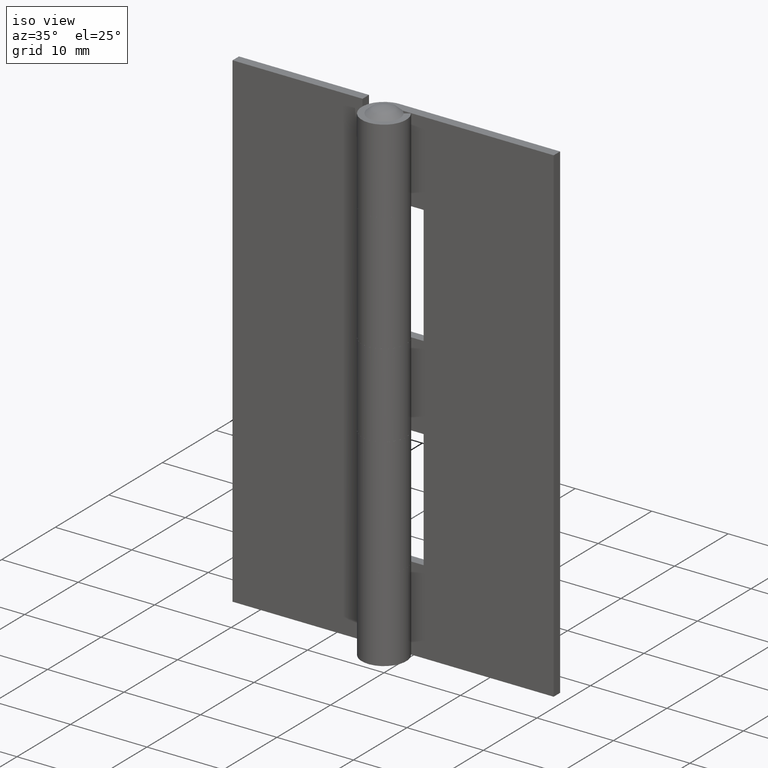
[diagram: clean part render]
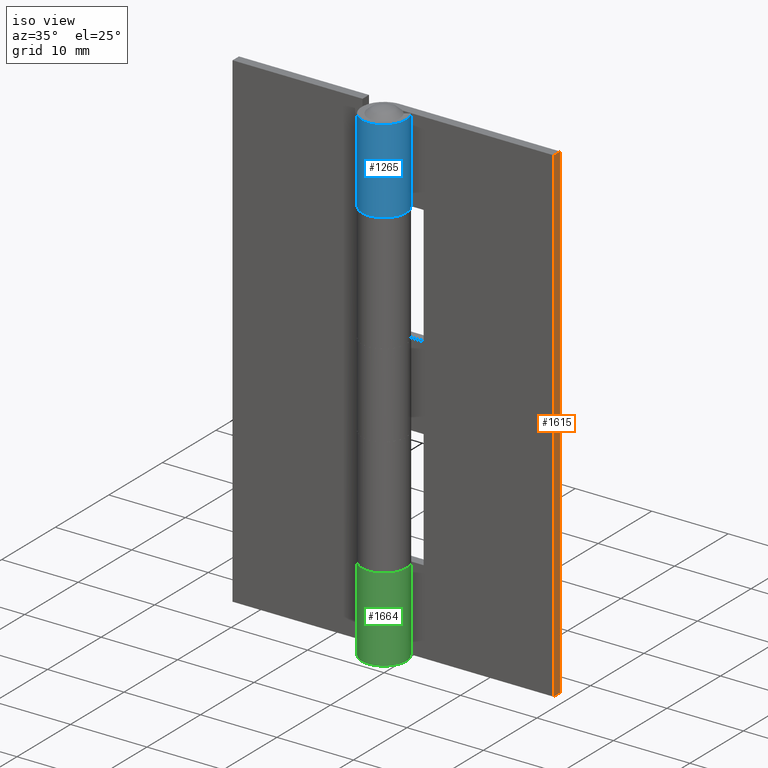
[diagram: same view with three faces highlighted in distinct colors, each labeled with its STEP entity id]
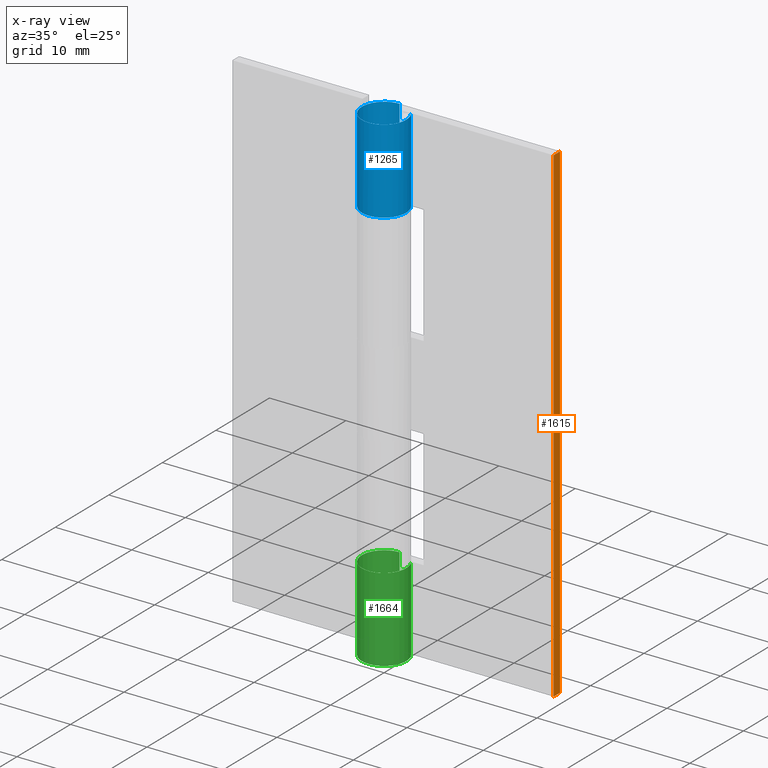
[diagram: x-ray of the same camera — body ghosted, the three highlighted faces saturated]
A machine part, iso view with three faces highlighted in distinct colors.
The next image is the same camera in x-ray (body ghosted, the three faces saturated) — at least one of them is partly hidden behind the body in this view.
Their STEP definitions:

[orange] entity #1615 — the highlighted face is a freeform B-spline surface patch.
#1137=CARTESIAN_POINT('',(21.0,1.700001000000000,0.0));
#1138=VERTEX_POINT('',#1137);
#1144=CARTESIAN_POINT('',(21.0,1.700001000000000,64.0));
#1145=VERTEX_POINT('',#1144);
#1146=CARTESIAN_POINT('',(21.0,1.700001000000000,64.0));
#1147=CARTESIAN_POINT('',(21.0,1.700001000000000,0.0));
#1148=QUASI_UNIFORM_CURVE('',1,(#1146,#1147),.UNSPECIFIED.,.F.,.U.);
#1149=EDGE_CURVE('',#1145,#1138,#1148,.T.);
#1554=CARTESIAN_POINT('',(21.0,2.900002000000000,0.0));
#1555=VERTEX_POINT('',#1554);
#1561=CARTESIAN_POINT('',(21.0,2.900002000000000,0.0));
#1562=CARTESIAN_POINT('',(21.0,1.700001000000000,0.0));
#1563=QUASI_UNIFORM_CURVE('',1,(#1561,#1562),.UNSPECIFIED.,.F.,.U.);
#1564=EDGE_CURVE('',#1555,#1138,#1563,.T.);
#1585=CARTESIAN_POINT('',(21.0,2.900002000000000,64.0));
#1586=VERTEX_POINT('',#1585);
#1587=CARTESIAN_POINT('',(21.0,2.900002000000000,64.0));
#1588=CARTESIAN_POINT('',(21.0,1.700001000000000,64.0));
#1589=QUASI_UNIFORM_CURVE('',1,(#1587,#1588),.UNSPECIFIED.,.F.,.U.);
#1590=EDGE_CURVE('',#1586,#1145,#1589,.T.);
#1600=CARTESIAN_POINT('',(21.0,1.640060952375835,67.196799875955577));
#1601=CARTESIAN_POINT('',(21.0,1.640060952375835,-3.196801592569350));
#1602=CARTESIAN_POINT('',(21.0,2.959942079810701,67.196799875955577));
#1603=CARTESIAN_POINT('',(21.0,2.959942079810701,-3.196801592569350));
#1604=B_SPLINE_SURFACE_WITH_KNOTS('',1,1,((#1600,#1602),(#1601,#1603)),.UNSPECIFIED.,.F.,.F.,.U.,(2,2),(2,2),(0.0,70.393601468524921),(0.041708334948495,0.958291687403247),.UNSPECIFIED.);
#1605=ORIENTED_EDGE('',*,*,#1564,.F.);
#1606=CARTESIAN_POINT('',(21.0,2.900002000000000,64.0));
#1607=CARTESIAN_POINT('',(21.0,2.900002000000000,0.0));
#1608=QUASI_UNIFORM_CURVE('',1,(#1606,#1607),.UNSPECIFIED.,.F.,.U.);
#1609=EDGE_CURVE('',#1586,#1555,#1608,.T.);
#1610=ORIENTED_EDGE('',*,*,#1609,.F.);
#1611=ORIENTED_EDGE('',*,*,#1590,.T.);
#1612=ORIENTED_EDGE('',*,*,#1149,.T.);
#1613=EDGE_LOOP('',(#1605,#1610,#1611,#1612));
#1614=FACE_OUTER_BOUND('',#1613,.T.);
#1615=ADVANCED_FACE('',(#1614),#1604,.T.);

[blue] entity #1265 — the highlighted face is a freeform B-spline surface patch.
#874=CARTESIAN_POINT('',(2.384848264526935,1.650003137932380,64.0));
#875=VERTEX_POINT('',#874);
#876=CARTESIAN_POINT('',(2.384848264526935,1.650003137932380,53.0));
#877=VERTEX_POINT('',#876);
#878=CARTESIAN_POINT('',(2.384848264526935,1.650003137932380,64.0));
#879=CARTESIAN_POINT('',(2.384848264526935,1.650003137932380,53.0));
#880=QUASI_UNIFORM_CURVE('',1,(#878,#879),.UNSPECIFIED.,.F.,.U.);
#881=EDGE_CURVE('',#875,#877,#880,.T.);
#1165=CARTESIAN_POINT('',(0.025306970398353,2.899891576809942,64.275000000000006));
#1166=CARTESIAN_POINT('',(0.025306970398353,2.899891576809942,52.718124999999993));
#1167=CARTESIAN_POINT('',(-3.598668132338351,2.931517528408523,64.275000000000020));
#1168=CARTESIAN_POINT('',(-3.598668132338351,2.931517528408523,52.718124999999993));
#1169=CARTESIAN_POINT('',(-2.834864105768699,-0.611193178813562,64.275000000000006));
#1170=CARTESIAN_POINT('',(-2.834864105768699,-0.611193178813562,52.718124999999993));
#1171=CARTESIAN_POINT('',(-2.071060079199047,-4.153903886035647,64.275000000000020));
#1172=CARTESIAN_POINT('',(-2.071060079199047,-4.153903886035647,52.718124999999993));
#1173=CARTESIAN_POINT('',(1.217943231346909,-2.631848378083404,64.275000000000006));
#1174=CARTESIAN_POINT('',(1.217943231346909,-2.631848378083404,52.718124999999993));
#1175=CARTESIAN_POINT('',(4.506946541892866,-1.109792870131161,64.275000000000020));
#1176=CARTESIAN_POINT('',(4.506946541892866,-1.109792870131161,52.718124999999993));
#1177=CARTESIAN_POINT('',(2.300726273551261,1.765409361648148,64.275000000000006));
#1178=CARTESIAN_POINT('',(2.300726273551261,1.765409361648148,52.718124999999993));
#1186=(BOUNDED_SURFACE()B_SPLINE_SURFACE(1,2,((#1165,#1167,#1169,#1171,#1173,#1175,#1177),(#1166,#1168,#1170,#1172,#1174,#1176,#1178)),.UNSPECIFIED.,.F.,.F.,.U.)B_SPLINE_SURFACE_WITH_KNOTS((2,2),(3,2,2,3),(0.0,11.556875000000010),(0.0,5.574397452177710,11.148794904355420,16.723192356533129),.UNSPECIFIED.)GEOMETRIC_REPRESENTATION_ITEM()RATIONAL_B_SPLINE_SURFACE(((1.0,0.624788514543960,1.0,0.624788514543960,1.0,0.624788514543960,1.0),(1.0,0.624788514543960,1.0,0.624788514543960,1.0,0.624788514543960,1.0)))REPRESENTATION_ITEM('')SURFACE());
#1187=CARTESIAN_POINT('',(0.0,2.900002000000000,64.0));
#1188=VERTEX_POINT('',#1187);
#1189=CARTESIAN_POINT('',(0.0,2.900001999999955,53.0));
#1190=VERTEX_POINT('',#1189);
#1191=CARTESIAN_POINT('',(0.0,2.900002000000000,64.0));
#1192=CARTESIAN_POINT('',(0.0,2.900001999999955,53.0));
#1193=QUASI_UNIFORM_CURVE('',1,(#1191,#1192),.UNSPECIFIED.,.F.,.U.);
#1194=EDGE_CURVE('',#1188,#1190,#1193,.T.);
#1195=ORIENTED_EDGE('',*,*,#1194,.T.);
#1196=CARTESIAN_POINT('',(0.0,2.900001999999955,53.0));
#1197=CARTESIAN_POINT('',(-0.230916322945743,2.900051843514684,53.000000000000007));
#1198=CARTESIAN_POINT('',(-0.602353715693044,2.855390494401352,53.000000000000142));
#1199=CARTESIAN_POINT('',(-1.119765574784126,2.688738713115951,52.999999999999957));
#1200=CARTESIAN_POINT('',(-1.577478550480980,2.454787885111885,53.000000000000320));
#1201=CARTESIAN_POINT('',(-2.022417299504022,2.106110564977613,52.999999999999261));
#1202=CARTESIAN_POINT('',(-2.387914506345996,1.675277514576359,53.000000000001251));
#1203=CARTESIAN_POINT('',(-2.626867486968117,1.254604399072204,52.999999999998160));
#1204=CARTESIAN_POINT('',(-2.792461147031254,0.822534688259006,53.000000000001783));
#1205=CARTESIAN_POINT('',(-2.906714653900790,0.300706048141245,52.999999999998813));
#1206=CARTESIAN_POINT('',(-2.908102939836941,-0.255755205334858,53.000000000000483));
#1207=CARTESIAN_POINT('',(-2.800857258319563,-0.798935145002392,52.999999999999943));
#1208=CARTESIAN_POINT('',(-2.600821947317730,-1.337507887217424,52.999999999999531));
#1209=CARTESIAN_POINT('',(-2.251482442944635,-1.871710090162057,53.000000000001428));
#1210=CARTESIAN_POINT('',(-1.765272681436022,-2.327168437443382,52.999999999997229));
#1211=CARTESIAN_POINT('',(-1.316440701972532,-2.599297401031008,53.000000000002551));
#1212=CARTESIAN_POINT('',(-0.839815480375977,-2.789064021377569,52.999999999999240));
#1213=CARTESIAN_POINT('',(-0.278349188428350,-2.913486612209853,53.000000000000419));
#1214=CARTESIAN_POINT('',(0.349717590871114,-2.903580580148985,52.999999999999829));
#1215=CARTESIAN_POINT('',(0.996042703704406,-2.746024780197794,53.000000000000028));
#1216=CARTESIAN_POINT('',(1.506704662742316,-2.501376909506281,53.0));
#1217=CARTESIAN_POINT('',(1.996198584274117,-2.129797054363426,53.000000000000007));
#1218=CARTESIAN_POINT('',(2.371099506713013,-1.705908385575840,52.999999999999993));
#1219=CARTESIAN_POINT('',(2.674844440870867,-1.171026440093840,53.000000000000007));
#1220=CARTESIAN_POINT('',(2.830761380777442,-0.690714034280840,52.999999999999972));
#1221=CARTESIAN_POINT('',(2.906252172217586,-0.183420685755548,53.000000000000121));
#1222=CARTESIAN_POINT('',(2.902129370515007,0.331093308728724,52.999999999999929));
#1223=CARTESIAN_POINT('',(2.757262196087679,0.992085842355864,52.999999999999133));
#1224=CARTESIAN_POINT('',(2.539169219437536,1.427133653108593,53.000000000004661));
#1225=CARTESIAN_POINT('',(2.384848264526935,1.650003137932380,53.0));
#1226=B_SPLINE_CURVE_WITH_KNOTS('',3,(#1196,#1197,#1198,#1199,#1200,#1201,#1202,#1203,#1204,#1205,#1206,#1207,#1208,#1209,#1210,#1211,#1212,#1213,#1214,#1215,#1216,#1217,#1218,#1219,#1220,#1221,#1222,#1223,#1224,#1225),.UNSPECIFIED.,.F.,.U.,(4,1,1,1,1,1,1,1,1,1,1,1,1,1,1,1,1,1,1,1,1,1,1,1,1,1,1,4),(0.000000359959415,0.692735688596658,1.114405383404840,1.626452659728550,2.228857436963235,2.801142201469432,3.313172984215985,3.674628440037022,4.186602051641872,4.909489321539443,5.331158440743050,5.843202675051877,6.626314962169515,7.228717902535147,7.831060446576219,8.192520740326856,8.764780936417790,9.547908704662936,10.059949741606710,10.752698829877970,11.234634287120301,11.897208410370020,12.439377229152839,13.071892956558100,13.403215133295900,13.975495119682900,14.608005259282031,15.421227777951650),.UNSPECIFIED.);
#1227=EDGE_CURVE('',#1190,#877,#1226,.T.);
#1228=ORIENTED_EDGE('',*,*,#1227,.T.);
#1229=ORIENTED_EDGE('',*,*,#881,.F.);
#1230=CARTESIAN_POINT('',(2.384848264526935,1.650003137932380,64.0));
#1231=CARTESIAN_POINT('',(2.476246808553350,1.517916649032505,63.999999999999950));
#1232=CARTESIAN_POINT('',(2.652107297623267,1.212298361124550,63.999999999999957));
#1233=CARTESIAN_POINT('',(2.820533798730171,0.736814721821945,64.000000000000270));
#1234=CARTESIAN_POINT('',(2.904290857026576,0.230090217984858,63.999999999999780));
#1235=CARTESIAN_POINT('',(2.902999577099113,-0.354520100877242,64.000000000000341));
#1236=CARTESIAN_POINT('',(2.767017891355467,-0.947002781030132,63.999999999998323));
#1237=CARTESIAN_POINT('',(2.517576252793832,-1.464562844612376,64.000000000002601));
#1238=CARTESIAN_POINT('',(2.229299534036011,-1.877125511573560,63.999999999998053));
#1239=CARTESIAN_POINT('',(1.874094093930128,-2.235273817414512,64.000000000000028));
#1240=CARTESIAN_POINT('',(1.433994440338998,-2.538019863249175,64.000000000000810));
#1241=CARTESIAN_POINT('',(0.920006777076195,-2.771277428995943,63.999999999999567));
#1242=CARTESIAN_POINT('',(0.279476233440191,-2.916932834763959,63.999999999999673));
#1243=CARTESIAN_POINT('',(-0.388996405918919,-2.899656675079276,64.000000000001705));
#1244=CARTESIAN_POINT('',(-1.033120709685191,-2.732197972402759,63.999999999997513));
#1245=CARTESIAN_POINT('',(-1.575879452815064,-2.461952031015429,64.000000000000540));
#1246=CARTESIAN_POINT('',(-2.038900594207776,-2.087411041474231,64.000000000000398));
#1247=CARTESIAN_POINT('',(-2.356497758644149,-1.709198920974125,63.999999999999858));
#1248=CARTESIAN_POINT('',(-2.613293050563318,-1.288454908642442,64.000000000000014));
#1249=CARTESIAN_POINT('',(-2.782523214928296,-0.866923810560233,63.999999999999979));
#1250=CARTESIAN_POINT('',(-2.902343560754799,-0.305974500623505,64.000000000000014));
#1251=CARTESIAN_POINT('',(-2.912335077073460,0.240278592681119,64.0));
#1252=CARTESIAN_POINT('',(-2.805041077751836,0.784140704414097,64.0));
#1253=CARTESIAN_POINT('',(-2.636820683815972,1.237076620984599,63.999999999999979));
#1254=CARTESIAN_POINT('',(-2.363050075552268,1.719120938512014,64.000000000000128));
#1255=CARTESIAN_POINT('',(-1.944934542441323,2.186788195531112,64.000000000000227));
#1256=CARTESIAN_POINT('',(-1.372750396742252,2.584648372632955,63.999999999997357));
#1257=CARTESIAN_POINT('',(-0.722834427443229,2.839598881391344,64.000000000007716));
#1258=CARTESIAN_POINT('',(-0.240951384378107,2.900066729261097,63.999999999992149));
#1259=CARTESIAN_POINT('',(0.0,2.900002000000000,64.0));
#1260=B_SPLINE_CURVE_WITH_KNOTS('',3,(#1230,#1231,#1232,#1233,#1234,#1235,#1236,#1237,#1238,#1239,#1240,#1241,#1242,#1243,#1244,#1245,#1246,#1247,#1248,#1249,#1250,#1251,#1252,#1253,#1254,#1255,#1256,#1257,#1258,#1259),.UNSPECIFIED.,.F.,.U.,(4,1,1,1,1,1,1,1,1,1,1,1,1,1,1,1,1,1,1,1,1,1,1,1,1,1,1,4),(0.000000359963922,0.481878738990776,1.054165231920036,1.505973164562599,2.018014837023298,2.801142201472619,3.313172984218872,3.734862933725843,4.307069719236104,4.819111052918409,5.331158440745002,5.993802113517477,6.776930423892191,7.319094371077824,7.981672502831361,8.584070799897258,9.096109219926063,9.457546269340357,10.059949741607101,10.451516292559550,11.174399858393841,11.686366875758340,12.108056435287780,12.620087365329960,13.342975041270140,13.975495119682870,14.698386145329881,15.421227777951650),.UNSPECIFIED.);
#1261=EDGE_CURVE('',#875,#1188,#1260,.T.);
#1262=ORIENTED_EDGE('',*,*,#1261,.T.);
#1263=EDGE_LOOP('',(#1195,#1228,#1229,#1262));
#1264=FACE_OUTER_BOUND('',#1263,.T.);
#1265=ADVANCED_FACE('',(#1264),#1186,.T.);

[green] entity #1664 — the highlighted face is a freeform B-spline surface patch.
#1459=CARTESIAN_POINT('',(2.384848264526935,1.650003137932380,11.0));
#1460=VERTEX_POINT('',#1459);
#1469=CARTESIAN_POINT('',(0.0,2.900001999999955,11.0));
#1470=VERTEX_POINT('',#1469);
#1476=CARTESIAN_POINT('',(2.384848264526935,1.650003137932380,11.0));
#1477=CARTESIAN_POINT('',(2.562094691427516,1.394142416386785,11.000000000000030));
#1478=CARTESIAN_POINT('',(2.745432616186786,1.008374893020277,10.999999999999950));
#1479=CARTESIAN_POINT('',(2.878422742081455,0.430139350995006,11.000000000000041));
#1480=CARTESIAN_POINT('',(2.918299985993663,-0.062128518810245,10.999999999999851));
#1481=CARTESIAN_POINT('',(2.858387379475095,-0.573716867602716,11.000000000000210));
#1482=CARTESIAN_POINT('',(2.710057646767468,-1.065025173065341,10.999999999999840));
#1483=CARTESIAN_POINT('',(2.482633456628735,-1.537208746152853,11.000000000000069));
#1484=CARTESIAN_POINT('',(2.133380064187721,-1.995243005024232,11.000000000000091));
#1485=CARTESIAN_POINT('',(1.698085261483305,-2.370585365793364,10.999999999999909));
#1486=CARTESIAN_POINT('',(1.271924681553598,-2.620180395028706,10.999999999999920));
#1487=CARTESIAN_POINT('',(0.727351631960221,-2.830795384158361,11.000000000000069));
#1488=CARTESIAN_POINT('',(0.166486005558963,-2.918995049450753,11.000000000000050));
#1489=CARTESIAN_POINT('',(-0.386339749915187,-2.884480858571573,10.999999999999879));
#1490=CARTESIAN_POINT('',(-0.868823118765556,-2.782922558542532,11.000000000000311));
#1491=CARTESIAN_POINT('',(-1.346354569800484,-2.589911528544792,10.999999999999540));
#1492=CARTESIAN_POINT('',(-1.843287906413824,-2.263310390238527,11.000000000000281));
#1493=CARTESIAN_POINT('',(-2.260263024372050,-1.851865910000071,10.999999999999901));
#1494=CARTESIAN_POINT('',(-2.569586714626409,-1.378737543600210,11.000000000000011));
#1495=CARTESIAN_POINT('',(-2.811288688136690,-0.803020461617839,11.0));
#1496=CARTESIAN_POINT('',(-2.916110783632993,-0.224414035372566,11.000000000000011));
#1497=CARTESIAN_POINT('',(-2.886342908215308,0.449941725153117,10.999999999999989));
#1498=CARTESIAN_POINT('',(-2.720061759605038,1.096688960468866,11.0));
#1499=CARTESIAN_POINT('',(-2.397721775421061,1.670951208261770,11.000000000000011));
#1500=CARTESIAN_POINT('',(-1.990618665115768,2.131002807915943,10.999999999999940));
#1501=CARTESIAN_POINT('',(-1.561592722337949,2.467246641563536,11.000000000000171));
#1502=CARTESIAN_POINT('',(-1.055878173028796,2.719158585243423,10.999999999999670));
#1503=CARTESIAN_POINT('',(-0.532091536470965,2.867048654088759,11.000000000001091));
#1504=CARTESIAN_POINT('',(-0.180712389699058,2.900022164151061,10.999999999997510));
#1505=CARTESIAN_POINT('',(0.0,2.900001999999955,11.0));
#1506=B_SPLINE_CURVE_WITH_KNOTS('',3,(#1476,#1477,#1478,#1479,#1480,#1481,#1482,#1483,#1484,#1485,#1486,#1487,#1488,#1489,#1490,#1491,#1492,#1493,#1494,#1495,#1496,#1497,#1498,#1499,#1500,#1501,#1502,#1503,#1504,#1505),.UNSPECIFIED.,.F.,.U.,(4,1,1,1,1,1,1,1,1,1,1,1,1,1,1,1,1,1,1,1,1,1,1,1,1,1,1,4),(0.000000359964092,0.933686341729794,1.265020578659350,1.777055977658915,2.409575419866714,2.801142201472395,3.313172984218666,3.975755334633458,4.517922105866546,5.029963093414571,5.451638924894303,6.264887314988791,6.716691440397719,7.108251690755338,7.740695791850060,8.252750005921104,8.885259774213253,9.487668612666784,9.939470489115454,10.752698829878019,11.234634287120260,11.957442839634380,12.740566202968299,13.192372209219140,13.794776917899840,14.367061761661850,14.879092691248850,15.421227777951639),.UNSPECIFIED.);
#1507=EDGE_CURVE('',#1460,#1470,#1506,.T.);
#1517=CARTESIAN_POINT('',(2.384848264526935,1.650003137932380,0.0));
#1518=VERTEX_POINT('',#1517);
#1519=CARTESIAN_POINT('',(0.0,2.900002000000000,0.0));
#1520=VERTEX_POINT('',#1519);
#1521=CARTESIAN_POINT('',(2.384848264526935,1.650003137932380,0.0));
#1522=CARTESIAN_POINT('',(2.550622912190498,1.410639796994854,0.0));
#1523=CARTESIAN_POINT('',(2.773360365720353,0.954424943250209,0.0));
#1524=CARTESIAN_POINT('',(2.914268535046537,0.241024573217775,0.0));
#1525=CARTESIAN_POINT('',(2.895968230121825,-0.405489526509418,0.0));
#1526=CARTESIAN_POINT('',(2.740061185669784,-1.011956076276324,0.0));
#1527=CARTESIAN_POINT('',(2.494028147071449,-1.509322909096079,0.0));
#1528=CARTESIAN_POINT('',(2.153159550514109,-1.971158638201990,0.0));
#1529=CARTESIAN_POINT('',(1.741574270646728,-2.345152894805652,0.0));
#1530=CARTESIAN_POINT('',(1.289315687737015,-2.609993336504413,0.0));
#1531=CARTESIAN_POINT('',(0.794063263103888,-2.807438774858768,0.0));
#1532=CARTESIAN_POINT('',(0.267705033404912,-2.909939984351545,0.0));
#1533=CARTESIAN_POINT('',(-0.306699315708134,-2.898041426350879,0.0));
#1534=CARTESIAN_POINT('',(-0.870403895729434,-2.788529103518594,0.0));
#1535=CARTESIAN_POINT('',(-1.373698361074702,-2.575941115909017,0.0));
#1536=CARTESIAN_POINT('',(-1.831540974173281,-2.264641916888101,0.0));
#1537=CARTESIAN_POINT('',(-2.212183624592091,-1.904354501076113,0.0));
#1538=CARTESIAN_POINT('',(-2.550400521183179,-1.426061930300913,0.0));
#1539=CARTESIAN_POINT('',(-2.763914773168207,-0.924528273474210,0.0));
#1540=CARTESIAN_POINT('',(-2.879186831828317,-0.434759365598815,0.0));
#1541=CARTESIAN_POINT('',(-2.913337531429308,0.017501269120684,0.0));
#1542=CARTESIAN_POINT('',(-2.861356434237079,0.589156552352486,0.0));
#1543=CARTESIAN_POINT('',(-2.703549477362367,1.101998057476799,0.0));
#1544=CARTESIAN_POINT('',(-2.430607036432942,1.606483390383832,0.0));
#1545=CARTESIAN_POINT('',(-2.095746586610535,2.036219560260181,0.0));
#1546=CARTESIAN_POINT('',(-1.614871213123682,2.437885087792983,0.0));
#1547=CARTESIAN_POINT('',(-1.075282477371010,2.713691018729332,0.0));
#1548=CARTESIAN_POINT('',(-0.532090324446745,2.867044823354373,0.0));
#1549=CARTESIAN_POINT('',(-0.180712390066592,2.900023439862502,0.0));
#1550=CARTESIAN_POINT('',(0.0,2.900002000000000,0.0));
#1551=B_SPLINE_CURVE_WITH_KNOTS('',3,(#1521,#1522,#1523,#1524,#1525,#1526,#1527,#1528,#1529,#1530,#1531,#1532,#1533,#1534,#1535,#1536,#1537,#1538,#1539,#1540,#1541,#1542,#1543,#1544,#1545,#1546,#1547,#1548,#1549,#1550),.UNSPECIFIED.,.F.,.U.,(4,1,1,1,1,1,1,1,1,1,1,1,1,1,1,1,1,1,1,1,1,1,1,1,1,1,1,4),(0.000000359964092,0.873447923215563,1.505973164562557,2.168617364250832,2.801142201472395,3.373402157294196,3.825227674683008,4.517922105866546,5.029963093414571,5.391398865241614,6.114279632765561,6.626314962170843,7.108251690755338,7.831060446577166,8.252750005921104,8.764780936418433,9.397305907814577,9.999710309743174,10.391276495424719,10.903317736107709,11.355087222004100,12.108056435287690,12.499612493225600,13.071892956558001,13.734536790581950,14.367061761661850,14.879092691248850,15.421227777951639),.UNSPECIFIED.);
#1552=EDGE_CURVE('',#1518,#1520,#1551,.T.);
#1623=CARTESIAN_POINT('',(2.384848264526935,1.650003137932380,11.0));
#1624=CARTESIAN_POINT('',(2.384848264526935,1.650003137932380,0.0));
#1625=QUASI_UNIFORM_CURVE('',1,(#1623,#1624),.UNSPECIFIED.,.F.,.U.);
#1626=EDGE_CURVE('',#1460,#1518,#1625,.T.);
#1632=CARTESIAN_POINT('',(0.025306970398353,2.899891576809942,11.275000000000000));
#1633=CARTESIAN_POINT('',(0.025306970398353,2.899891576809942,-0.281874999999999));
#1634=CARTESIAN_POINT('',(-3.598668132338351,2.931517528408523,11.275000000000002));
#1635=CARTESIAN_POINT('',(-3.598668132338351,2.931517528408523,-0.281874999999999));
#1636=CARTESIAN_POINT('',(-2.834864105768699,-0.611193178813562,11.275000000000000));
#1637=CARTESIAN_POINT('',(-2.834864105768699,-0.611193178813562,-0.281874999999999));
#1638=CARTESIAN_POINT('',(-2.071060079199047,-4.153903886035647,11.275000000000002));
#1639=CARTESIAN_POINT('',(-2.071060079199047,-4.153903886035647,-0.281874999999999));
#1640=CARTESIAN_POINT('',(1.217943231346909,-2.631848378083404,11.275000000000000));
#1641=CARTESIAN_POINT('',(1.217943231346909,-2.631848378083404,-0.281874999999999));
#1642=CARTESIAN_POINT('',(4.506946541892866,-1.109792870131161,11.275000000000002));
#1643=CARTESIAN_POINT('',(4.506946541892866,-1.109792870131161,-0.281874999999999));
#1644=CARTESIAN_POINT('',(2.300726273551261,1.765409361648148,11.275000000000000));
#1645=CARTESIAN_POINT('',(2.300726273551261,1.765409361648148,-0.281874999999999));
#1653=(BOUNDED_SURFACE()B_SPLINE_SURFACE(1,2,((#1632,#1634,#1636,#1638,#1640,#1642,#1644),(#1633,#1635,#1637,#1639,#1641,#1643,#1645)),.UNSPECIFIED.,.F.,.F.,.U.)B_SPLINE_SURFACE_WITH_KNOTS((2,2),(3,2,2,3),(0.0,11.556875000000000),(0.0,5.574397452177710,11.148794904355420,16.723192356533129),.UNSPECIFIED.)GEOMETRIC_REPRESENTATION_ITEM()RATIONAL_B_SPLINE_SURFACE(((1.0,0.624788514543960,1.0,0.624788514543960,1.0,0.624788514543960,1.0),(1.0,0.624788514543960,1.0,0.624788514543960,1.0,0.624788514543960,1.0)))REPRESENTATION_ITEM('')SURFACE());
#1654=ORIENTED_EDGE('',*,*,#1626,.F.);
#1655=ORIENTED_EDGE('',*,*,#1507,.T.);
#1656=CARTESIAN_POINT('',(0.0,2.900001999999955,11.0));
#1657=CARTESIAN_POINT('',(0.0,2.900002000000000,0.0));
#1658=QUASI_UNIFORM_CURVE('',1,(#1656,#1657),.UNSPECIFIED.,.F.,.U.);
#1659=EDGE_CURVE('',#1470,#1520,#1658,.T.);
#1660=ORIENTED_EDGE('',*,*,#1659,.T.);
#1661=ORIENTED_EDGE('',*,*,#1552,.F.);
#1662=EDGE_LOOP('',(#1654,#1655,#1660,#1661));
#1663=FACE_OUTER_BOUND('',#1662,.T.);
#1664=ADVANCED_FACE('',(#1663),#1653,.T.);